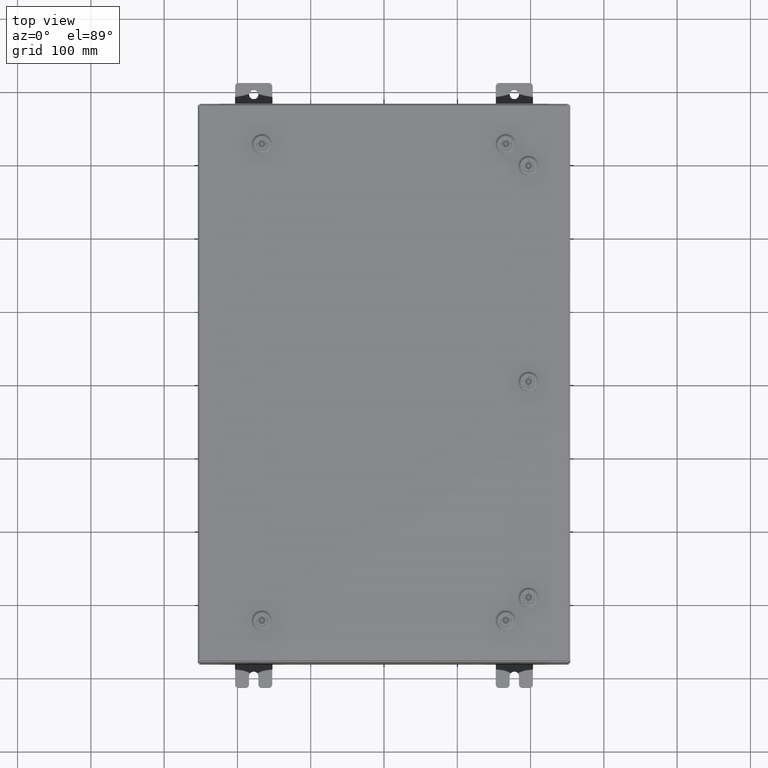
[diagram: clean part render]
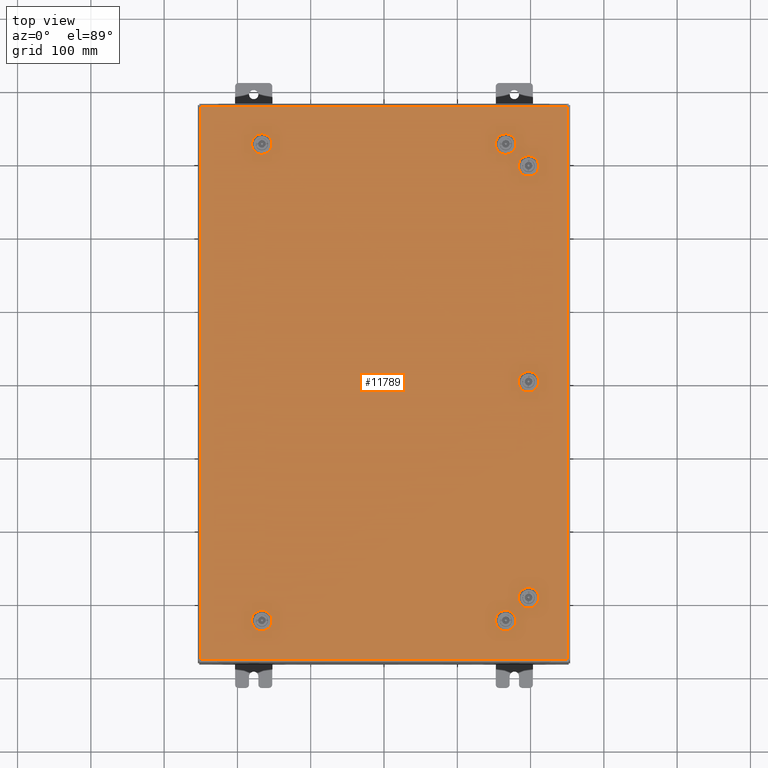
[diagram: same view with one face highlighted and labeled with its STEP entity id]
A machine part, top view. The second image highlights one B-rep face of the part: STEP entity #11789.
In plain terms, the highlighted planar face has unit normal (0, 0, -1).
Its self-contained STEP definition (entity closure, byte-faithful):
#49 = VECTOR ( 'NONE', #11879, 39.37007874015748100 ) ;
#198 = AXIS2_PLACEMENT_3D ( 'NONE', #49388, #19761, #54386 ) ;
#611 = EDGE_CURVE ( 'NONE', #34661, #18356, #27141, .T. ) ;
#845 = DIRECTION ( 'NONE',  ( 0.0000000000000000000, 0.0000000000000000000, 1.000000000000000000 ) ) ;
#1038 = DIRECTION ( 'NONE',  ( 1.000000000000000000, 0.0000000000000000000, 0.0000000000000000000 ) ) ;
#1061 = EDGE_LOOP ( 'NONE', ( #62423, #33838, #8929, #53612, #38947 ) ) ;
#1342 = CARTESIAN_POINT ( 'NONE',  ( -6.562499999999986700, 12.78779999999999400, 0.0000000000000000000 ) ) ;
#1363 = VERTEX_POINT ( 'NONE', #14179 ) ;
#1647 = FACE_BOUND ( 'NONE', #18962, .T. ) ;
#1714 = LINE ( 'NONE', #3328, #39756 ) ;
#1718 = CARTESIAN_POINT ( 'NONE',  ( 9.849799999999994800, 14.84980000000000200, 8.878505979408856000E-016 ) ) ;
#2415 = VERTEX_POINT ( 'NONE', #27401 ) ;
#2706 = DIRECTION ( 'NONE',  ( -0.0000000000000000000, -6.982962677686266700E-015, 1.000000000000000000 ) ) ;
#2751 = VERTEX_POINT ( 'NONE', #28234 ) ;
#2952 = AXIS2_PLACEMENT_3D ( 'NONE', #26917, #61451, #31900 ) ;
#3195 = FACE_BOUND ( 'NONE', #38734, .T. ) ;
#3328 = CARTESIAN_POINT ( 'NONE',  ( -6.363047624732096200, -13.18279999999999000, -5.239805704455435800E-014 ) ) ;
#3753 = CARTESIAN_POINT ( 'NONE',  ( 9.849799999999994800, 14.84980000000000200, 8.878505979408856000E-016 ) ) ;
#3958 = EDGE_CURVE ( 'NONE', #45431, #29793, #37770, .T. ) ;
#4021 = VERTEX_POINT ( 'NONE', #3753 ) ;
#4144 = DIRECTION ( 'NONE',  ( -8.218046007208784700E-015, -1.000000000000000000, 0.0000000000000000000 ) ) ;
#4161 = CIRCLE ( 'NONE', #198, 0.4424999999999983400 ) ;
#4304 = VERTEX_POINT ( 'NONE', #15215 ) ;
#4361 = AXIS2_PLACEMENT_3D ( 'NONE', #46582, #17102, #47200 ) ;
#4365 = CARTESIAN_POINT ( 'NONE',  ( 7.392800000000011800, 0.1994523752679053200, 0.0000000000000000000 ) ) ;
#4535 = LINE ( 'NONE', #1718, #6091 ) ;
#4689 = EDGE_CURVE ( 'NONE', #4304, #2751, #27634, .T. ) ;
#4789 = CARTESIAN_POINT ( 'NONE',  ( 7.392800000000008300, -0.1994523752678671000, 0.0000000000000000000 ) ) ;
#4820 = ORIENTED_EDGE ( 'NONE', *, *, #3958, .F. ) ;
#4878 = VERTEX_POINT ( 'NONE', #33405 ) ;
#5133 = CARTESIAN_POINT ( 'NONE',  ( 8.182800000000000300, 11.76195237526789900, 0.0000000000000000000 ) ) ;
#5434 = DIRECTION ( 'NONE',  ( 8.218046007208784700E-015, -1.000000000000000000, -6.982962677686345600E-015 ) ) ;
#5483 = CARTESIAN_POINT ( 'NONE',  ( -9.849800000000001900, 14.84980000000000000, -3.483106191921935600E-015 ) ) ;
#5689 = VERTEX_POINT ( 'NONE', #13405 ) ;
#6091 = VECTOR ( 'NONE', #31455, 39.37007874015748100 ) ;
#6341 = DIRECTION ( 'NONE',  ( 1.000000000000000000, 0.0000000000000000000, 0.0000000000000000000 ) ) ;
#6763 = EDGE_CURVE ( 'NONE', #30384, #2415, #61602, .T. ) ;
#6912 = ORIENTED_EDGE ( 'NONE', *, *, #6763, .F. ) ;
#6977 = CARTESIAN_POINT ( 'NONE',  ( -6.761952375267871900, -12.39280000000000100, -4.688151652918228700E-014 ) ) ;
#7195 = DIRECTION ( 'NONE',  ( 0.0000000000000000000, 0.0000000000000000000, 1.000000000000000000 ) ) ;
#7910 = AXIS2_PLACEMENT_3D ( 'NONE', #48904, #19251, #53881 ) ;
#7970 = EDGE_CURVE ( 'NONE', #61320, #52871, #19000, .T. ) ;
#8096 = CARTESIAN_POINT ( 'NONE',  ( 6.761952375267871900, -12.39280000000000100, 0.0000000000000000000 ) ) ;
#8213 = ORIENTED_EDGE ( 'NONE', *, *, #23076, .F. ) ;
#8251 = CIRCLE ( 'NONE', #29897, 0.4424999999999972800 ) ;
#8424 = EDGE_CURVE ( 'NONE', #60074, #4878, #15041, .T. ) ;
#8464 = CIRCLE ( 'NONE', #13867, 0.4424999999999972800 ) ;
#8487 = LINE ( 'NONE', #46285, #21721 ) ;
#8495 = AXIS2_PLACEMENT_3D ( 'NONE', #44945, #50078, #14098 ) ;
#8929 = ORIENTED_EDGE ( 'NONE', *, *, #25871, .F. ) ;
#9344 = DIRECTION ( 'NONE',  ( 6.982962677686266700E-015, -0.0000000000000000000, 1.000000000000000000 ) ) ;
#10157 = DIRECTION ( 'NONE',  ( 1.000000000000000000, -1.095739467627835000E-014, 6.982962677686171300E-015 ) ) ;
#10256 = EDGE_LOOP ( 'NONE', ( #19436, #41202, #13131, #6912, #30963 ) ) ;
#10565 = DIRECTION ( 'NONE',  ( 1.000000000000000000, 0.0000000000000000000, -6.982962677686248600E-015 ) ) ;
#10963 = DIRECTION ( 'NONE',  ( -0.0000000000000000000, -6.982962677686266700E-015, 1.000000000000000000 ) ) ;
#11544 = VERTEX_POINT ( 'NONE', #60140 ) ;
#11581 = AXIS2_PLACEMENT_3D ( 'NONE', #36941, #7195, #41928 ) ;
#11789 = ADVANCED_FACE ( 'NONE', ( #17987, #3195, #41255, #54360, #28058, #14822, #1647, #52821 ), #12475, .F. ) ;
#11879 = DIRECTION ( 'NONE',  ( -1.000000000000000000, 1.095739467627835000E-014, 0.0000000000000000000 ) ) ;
#12104 = EDGE_CURVE ( 'NONE', #4878, #36389, #31912, .T. ) ;
#12151 = CARTESIAN_POINT ( 'NONE',  ( 6.363047624732095300, 13.18279999999999000, -2.498676961502389700E-014 ) ) ;
#12158 = AXIS2_PLACEMENT_3D ( 'NONE', #51239, #21596, #56199 ) ;
#12207 = CARTESIAN_POINT ( 'NONE',  ( -6.363047624732101500, 12.39279999999999800, 0.0000000000000000000 ) ) ;
#12475 = PLANE ( 'NONE',  #4361 ) ;
#12554 = AXIS2_PLACEMENT_3D ( 'NONE', #32421, #2706, #37423 ) ;
#13131 = ORIENTED_EDGE ( 'NONE', *, *, #35836, .F. ) ;
#13259 = LINE ( 'NONE', #41656, #49 ) ;
#13405 = CARTESIAN_POINT ( 'NONE',  ( 9.849799999999996600, -14.84979999999999300, -2.048885995248197400E-016 ) ) ;
#13731 = VECTOR ( 'NONE', #46308, 39.37007874015748100 ) ;
#13867 = AXIS2_PLACEMENT_3D ( 'NONE', #1342, #36082, #6341 ) ;
#13946 = VERTEX_POINT ( 'NONE', #32050 ) ;
#14098 = DIRECTION ( 'NONE',  ( 1.000000000000000000, 0.0000000000000000000, 6.982962677686260400E-015 ) ) ;
#14179 = CARTESIAN_POINT ( 'NONE',  ( -6.119999999999989400, 12.78779999999999400, 0.0000000000000000000 ) ) ;
#14561 = DIRECTION ( 'NONE',  ( -6.982962677686266700E-015, -6.982962677686266700E-015, 1.000000000000000000 ) ) ;
#14578 = LINE ( 'NONE', #18203, #26287 ) ;
#14763 = CARTESIAN_POINT ( 'NONE',  ( 8.182800000000000300, 0.1994523752679009100, 0.0000000000000000000 ) ) ;
#14822 = FACE_BOUND ( 'NONE', #1061, .T. ) ;
#15041 = CIRCLE ( 'NONE', #59818, 0.4424999999999972800 ) ;
#15215 = CARTESIAN_POINT ( 'NONE',  ( 7.004999999999983900, 12.78779999999999700, -2.946949909237161200E-014 ) ) ;
#15503 = AXIS2_PLACEMENT_3D ( 'NONE', #30605, #845, #35582 ) ;
#15965 = CARTESIAN_POINT ( 'NONE',  ( 6.562499999999986700, 12.78779999999999700, -2.637953810749545800E-014 ) ) ;
#16057 = CARTESIAN_POINT ( 'NONE',  ( 6.562499999999987600, -12.78779999999999700, -2.326024867937287700E-014 ) ) ;
#16573 = EDGE_CURVE ( 'NONE', #47826, #13946, #20865, .T. ) ;
#16574 = DIRECTION ( 'NONE',  ( -8.218046007208852600E-015, 1.000000000000000000, -0.0000000000000000000 ) ) ;
#16610 = VECTOR ( 'NONE', #47365, 39.37007874015748100 ) ;
#17102 = DIRECTION ( 'NONE',  ( 0.0000000000000000000, 0.0000000000000000000, -1.000000000000000000 ) ) ;
#17327 = VECTOR ( 'NONE', #44183, 39.37007874015748100 ) ;
#17347 = EDGE_LOOP ( 'NONE', ( #30222, #23802, #36205, #8213 ) ) ;
#17987 = FACE_BOUND ( 'NONE', #42032, .T. ) ;
#18203 = CARTESIAN_POINT ( 'NONE',  ( -6.363047624732104200, -12.39280000000000100, -4.688151652918229300E-014 ) ) ;
#18230 = AXIS2_PLACEMENT_3D ( 'NONE', #52228, #22604, #57185 ) ;
#18356 = VERTEX_POINT ( 'NONE', #46250 ) ;
#18945 = CIRCLE ( 'NONE', #7910, 0.4424999999999972800 ) ;
#18962 = EDGE_LOOP ( 'NONE', ( #24291, #27328, #18977, #20197, #43527 ) ) ;
#18977 = ORIENTED_EDGE ( 'NONE', *, *, #59113, .F. ) ;
#19000 = LINE ( 'NONE', #12207, #29072 ) ;
#19251 = DIRECTION ( 'NONE',  ( 0.0000000000000000000, 0.0000000000000000000, 1.000000000000000000 ) ) ;
#19436 = ORIENTED_EDGE ( 'NONE', *, *, #45437, .F. ) ;
#19454 = EDGE_LOOP ( 'NONE', ( #4820, #39763, #51437, #52896, #32957 ) ) ;
#19756 = CARTESIAN_POINT ( 'NONE',  ( 8.182800000000005600, -11.36304762473213100, -2.415703400261412700E-013 ) ) ;
#19761 = DIRECTION ( 'NONE',  ( -0.0000000000000000000, -6.982962677686266700E-015, 1.000000000000000000 ) ) ;
#20100 = EDGE_CURVE ( 'NONE', #18356, #45431, #54684, .T. ) ;
#20197 = ORIENTED_EDGE ( 'NONE', *, *, #47053, .F. ) ;
#20417 = DIRECTION ( 'NONE',  ( -8.218046007208770500E-015, -1.000000000000000000, 0.0000000000000000000 ) ) ;
#20538 = CARTESIAN_POINT ( 'NONE',  ( -6.562499999999986700, 12.78779999999999400, 0.0000000000000000000 ) ) ;
#20865 = LINE ( 'NONE', #40148, #45674 ) ;
#20996 = DIRECTION ( 'NONE',  ( -1.000000000000000000, 0.0000000000000000000, 6.982962677686260400E-015 ) ) ;
#21085 = DIRECTION ( 'NONE',  ( 1.000000000000000000, 0.0000000000000000000, 6.982962677686260400E-015 ) ) ;
#21596 = DIRECTION ( 'NONE',  ( 0.0000000000000000000, 0.0000000000000000000, 1.000000000000000000 ) ) ;
#21721 = VECTOR ( 'NONE', #16574, 39.37007874015748100 ) ;
#22143 = CARTESIAN_POINT ( 'NONE',  ( -9.849799999999996600, -14.84979999999999500, -2.048885995248197400E-016 ) ) ;
#22406 = EDGE_CURVE ( 'NONE', #56643, #47826, #4161, .T. ) ;
#22505 = VERTEX_POINT ( 'NONE', #50488 ) ;
#22604 = DIRECTION ( 'NONE',  ( 6.982962677686266700E-015, -0.0000000000000000000, 1.000000000000000000 ) ) ;
#23076 = EDGE_CURVE ( 'NONE', #43039, #57817, #47853, .T. ) ;
#23315 = CARTESIAN_POINT ( 'NONE',  ( 6.363047624732104200, -12.39280000000000100, -2.189474691415834200E-014 ) ) ;
#23802 = ORIENTED_EDGE ( 'NONE', *, *, #45123, .F. ) ;
#23838 = VECTOR ( 'NONE', #20417, 39.37007874015748100 ) ;
#24007 = CARTESIAN_POINT ( 'NONE',  ( -6.562499999999987600, -12.78779999999999700, -4.963978678686834100E-014 ) ) ;
#24291 = ORIENTED_EDGE ( 'NONE', *, *, #7970, .F. ) ;
#24358 = AXIS2_PLACEMENT_3D ( 'NONE', #60373, #30787, #1038 ) ;
#25160 = EDGE_CURVE ( 'NONE', #57817, #62711, #51722, .T. ) ;
#25506 = LINE ( 'NONE', #28680, #34019 ) ;
#25519 = DIRECTION ( 'NONE',  ( 1.000000000000000000, 0.0000000000000000000, 0.0000000000000000000 ) ) ;
#25581 = ORIENTED_EDGE ( 'NONE', *, *, #47153, .T. ) ;
#25602 = CARTESIAN_POINT ( 'NONE',  ( 6.363047624732101500, 12.39280000000000100, -2.498676961502394800E-014 ) ) ;
#25699 = CARTESIAN_POINT ( 'NONE',  ( -6.363047624732101500, 12.39279999999999800, 0.0000000000000000000 ) ) ;
#25871 = EDGE_CURVE ( 'NONE', #36389, #4304, #8251, .T. ) ;
#26287 = VECTOR ( 'NONE', #47847, 39.37007874015748100 ) ;
#26917 = CARTESIAN_POINT ( 'NONE',  ( -6.562499999999987600, -12.78779999999999700, -4.963978678686834100E-014 ) ) ;
#27141 = CIRCLE ( 'NONE', #8495, 0.4424999999999972800 ) ;
#27242 = DIRECTION ( 'NONE',  ( 1.000000000000000000, -0.0000000000000000000, -0.0000000000000000000 ) ) ;
#27328 = ORIENTED_EDGE ( 'NONE', *, *, #61183, .F. ) ;
#27384 = ORIENTED_EDGE ( 'NONE', *, *, #16573, .F. ) ;
#27401 = CARTESIAN_POINT ( 'NONE',  ( -6.363047624732104200, -12.39280000000000100, -4.688151652918229300E-014 ) ) ;
#27634 = CIRCLE ( 'NONE', #18230, 0.4424999999999972800 ) ;
#27875 = CARTESIAN_POINT ( 'NONE',  ( -6.761952375267868300, 13.18279999999999000, 0.0000000000000000000 ) ) ;
#28058 = FACE_BOUND ( 'NONE', #10256, .T. ) ;
#28234 = CARTESIAN_POINT ( 'NONE',  ( 6.761952375267868300, 13.18279999999999300, 0.0000000000000000000 ) ) ;
#28375 = VERTEX_POINT ( 'NONE', #44396 ) ;
#28680 = CARTESIAN_POINT ( 'NONE',  ( 7.392800000000011800, 11.76195237526790500, 0.0000000000000000000 ) ) ;
#28803 = EDGE_CURVE ( 'NONE', #2751, #60074, #56110, .T. ) ;
#28807 = ORIENTED_EDGE ( 'NONE', *, *, #58001, .F. ) ;
#28992 = DIRECTION ( 'NONE',  ( 0.0000000000000000000, 1.000000000000000000, 6.982962677686286400E-015 ) ) ;
#29072 = VECTOR ( 'NONE', #27242, 39.37007874015748100 ) ;
#29316 = VERTEX_POINT ( 'NONE', #45399 ) ;
#29336 = VECTOR ( 'NONE', #10157, 39.37007874015748100 ) ;
#29793 = VERTEX_POINT ( 'NONE', #38111 ) ;
#29897 = AXIS2_PLACEMENT_3D ( 'NONE', #15965, #50636, #20996 ) ;
#30222 = ORIENTED_EDGE ( 'NONE', *, *, #48364, .F. ) ;
#30281 = EDGE_CURVE ( 'NONE', #41438, #56643, #32054, .T. ) ;
#30300 = CARTESIAN_POINT ( 'NONE',  ( -6.363047624732096200, -13.18279999999999000, -5.239805704455435800E-014 ) ) ;
#30384 = VERTEX_POINT ( 'NONE', #40409 ) ;
#30605 = CARTESIAN_POINT ( 'NONE',  ( 7.787800000000005200, 11.56250000000001600, 0.0000000000000000000 ) ) ;
#30787 = DIRECTION ( 'NONE',  ( 0.0000000000000000000, 0.0000000000000000000, 1.000000000000000000 ) ) ;
#30963 = ORIENTED_EDGE ( 'NONE', *, *, #31274, .F. ) ;
#31274 = EDGE_CURVE ( 'NONE', #44907, #30384, #42091, .T. ) ;
#31362 = CARTESIAN_POINT ( 'NONE',  ( 9.849799999999996600, -14.84979999999999300, -2.048885995248197400E-016 ) ) ;
#31455 = DIRECTION ( 'NONE',  ( -1.000000000000000000, -0.0000000000000000000, -0.0000000000000000000 ) ) ;
#31784 = CARTESIAN_POINT ( 'NONE',  ( -9.849800000000001900, 14.84980000000000000, -3.483106191921935600E-015 ) ) ;
#31823 = LINE ( 'NONE', #5483, #33362 ) ;
#31900 = DIRECTION ( 'NONE',  ( 0.0000000000000000000, 1.000000000000000000, 6.982962677686269100E-015 ) ) ;
#31912 = LINE ( 'NONE', #25602, #45108 ) ;
#32050 = CARTESIAN_POINT ( 'NONE',  ( 7.392800000000014500, -11.76195237526790500, -2.443558770110843000E-013 ) ) ;
#32054 = LINE ( 'NONE', #58802, #17327 ) ;
#32253 = ORIENTED_EDGE ( 'NONE', *, *, #33883, .T. ) ;
#32421 = CARTESIAN_POINT ( 'NONE',  ( -6.562499999999987600, -12.78779999999999700, -4.963978678686834100E-014 ) ) ;
#32538 = AXIS2_PLACEMENT_3D ( 'NONE', #40726, #10963, #45715 ) ;
#32655 = VECTOR ( 'NONE', #45883, 39.37007874015748100 ) ;
#32957 = ORIENTED_EDGE ( 'NONE', *, *, #49052, .F. ) ;
#33362 = VECTOR ( 'NONE', #35206, 39.37007874015748100 ) ;
#33405 = CARTESIAN_POINT ( 'NONE',  ( 6.363047624732101500, 12.39280000000000100, -2.498676961502394800E-014 ) ) ;
#33838 = ORIENTED_EDGE ( 'NONE', *, *, #4689, .F. ) ;
#33871 = CARTESIAN_POINT ( 'NONE',  ( 7.392800000000008300, 11.36304762473213300, 0.0000000000000000000 ) ) ;
#33883 = EDGE_CURVE ( 'NONE', #45192, #49117, #31823, .T. ) ;
#34019 = VECTOR ( 'NONE', #4144, 39.37007874015748100 ) ;
#34661 = VERTEX_POINT ( 'NONE', #45909 ) ;
#34867 = DIRECTION ( 'NONE',  ( -8.218046007208830500E-015, 1.000000000000000000, -0.0000000000000000000 ) ) ;
#35206 = DIRECTION ( 'NONE',  ( 0.0000000000000000000, -1.000000000000000000, 0.0000000000000000000 ) ) ;
#35305 = CIRCLE ( 'NONE', #11581, 0.4424999999999972800 ) ;
#35582 = DIRECTION ( 'NONE',  ( 1.000000000000000000, 0.0000000000000000000, 0.0000000000000000000 ) ) ;
#35591 = EDGE_CURVE ( 'NONE', #4021, #45192, #4535, .T. ) ;
#35836 = EDGE_CURVE ( 'NONE', #2415, #55502, #14578, .T. ) ;
#35907 = CIRCLE ( 'NONE', #12158, 0.4424999999999983400 ) ;
#36082 = DIRECTION ( 'NONE',  ( 0.0000000000000000000, 0.0000000000000000000, 1.000000000000000000 ) ) ;
#36205 = ORIENTED_EDGE ( 'NONE', *, *, #25160, .F. ) ;
#36236 = VECTOR ( 'NONE', #62840, 39.37007874015748100 ) ;
#36389 = VERTEX_POINT ( 'NONE', #62941 ) ;
#36818 = EDGE_CURVE ( 'NONE', #5689, #4021, #41736, .T. ) ;
#36941 = CARTESIAN_POINT ( 'NONE',  ( 7.787800000000005200, 11.56250000000001600, 0.0000000000000000000 ) ) ;
#37335 = CIRCLE ( 'NONE', #39284, 0.4424999999999972800 ) ;
#37423 = DIRECTION ( 'NONE',  ( 0.0000000000000000000, 1.000000000000000000, 6.982962677686286400E-015 ) ) ;
#37538 = LINE ( 'NONE', #5133, #49113 ) ;
#37770 = LINE ( 'NONE', #23315, #36236 ) ;
#38053 = DIRECTION ( 'NONE',  ( 1.000000000000000000, 1.095739467627835000E-014, 9.732121487607470400E-029 ) ) ;
#38111 = CARTESIAN_POINT ( 'NONE',  ( 6.363047624732104200, -12.39280000000000100, -2.189474691415834200E-014 ) ) ;
#38734 = EDGE_LOOP ( 'NONE', ( #58151, #28807, #51943, #44517 ) ) ;
#38947 = ORIENTED_EDGE ( 'NONE', *, *, #8424, .F. ) ;
#39110 = ORIENTED_EDGE ( 'NONE', *, *, #22406, .F. ) ;
#39128 = CARTESIAN_POINT ( 'NONE',  ( 6.562499999999986700, 12.78779999999999700, -2.637953810749545800E-014 ) ) ;
#39284 = AXIS2_PLACEMENT_3D ( 'NONE', #20538, #55145, #25519 ) ;
#39756 = VECTOR ( 'NONE', #38053, 39.37007874015748100 ) ;
#39763 = ORIENTED_EDGE ( 'NONE', *, *, #20100, .F. ) ;
#39922 = CARTESIAN_POINT ( 'NONE',  ( 6.363047624732096200, -13.18279999999999000, -2.741128742953046100E-014 ) ) ;
#40148 = CARTESIAN_POINT ( 'NONE',  ( 7.392800000000014500, -11.76195237526790500, -2.443558770110843500E-013 ) ) ;
#40409 = CARTESIAN_POINT ( 'NONE',  ( -6.119999999999990300, -12.78779999999999700, -4.963978678686834100E-014 ) ) ;
#40726 = CARTESIAN_POINT ( 'NONE',  ( 7.787800000000006900, -11.56250000000001600, -2.429631085186127900E-013 ) ) ;
#40896 = CARTESIAN_POINT ( 'NONE',  ( -9.849799999999996600, -14.84979999999999500, -2.048885995248197400E-016 ) ) ;
#40899 = AXIS2_PLACEMENT_3D ( 'NONE', #44336, #14561, #49244 ) ;
#41202 = ORIENTED_EDGE ( 'NONE', *, *, #43323, .F. ) ;
#41255 = FACE_BOUND ( 'NONE', #17347, .T. ) ;
#41438 = VERTEX_POINT ( 'NONE', #49098 ) ;
#41656 = CARTESIAN_POINT ( 'NONE',  ( -6.363047624732095300, 13.18279999999998400, 0.0000000000000000000 ) ) ;
#41736 = LINE ( 'NONE', #31362, #13731 ) ;
#41865 = AXIS2_PLACEMENT_3D ( 'NONE', #16057, #50718, #21085 ) ;
#41928 = DIRECTION ( 'NONE',  ( 1.000000000000000000, 0.0000000000000000000, 0.0000000000000000000 ) ) ;
#42032 = EDGE_LOOP ( 'NONE', ( #27384, #39110, #53700, #46950 ) ) ;
#42091 = CIRCLE ( 'NONE', #12554, 0.4424999999999961700 ) ;
#43039 = VERTEX_POINT ( 'NONE', #14763 ) ;
#43323 = EDGE_CURVE ( 'NONE', #55502, #59053, #53003, .T. ) ;
#43341 = ORIENTED_EDGE ( 'NONE', *, *, #35591, .T. ) ;
#43527 = ORIENTED_EDGE ( 'NONE', *, *, #54220, .F. ) ;
#43934 = EDGE_CURVE ( 'NONE', #13946, #41438, #55304, .T. ) ;
#44101 = DIRECTION ( 'NONE',  ( -1.000000000000000000, 0.0000000000000000000, 6.982962677686269100E-015 ) ) ;
#44183 = DIRECTION ( 'NONE',  ( 8.218046007208830500E-015, 1.000000000000000000, 6.982962677686306200E-015 ) ) ;
#44336 = CARTESIAN_POINT ( 'NONE',  ( 6.562499999999987600, -12.78779999999999700, -2.326024867937287700E-014 ) ) ;
#44396 = CARTESIAN_POINT ( 'NONE',  ( 6.363047624732096200, -13.18279999999999000, -2.741128742953046100E-014 ) ) ;
#44517 = ORIENTED_EDGE ( 'NONE', *, *, #52933, .F. ) ;
#44907 = VERTEX_POINT ( 'NONE', #30300 ) ;
#44945 = CARTESIAN_POINT ( 'NONE',  ( 6.562499999999987600, -12.78779999999999700, -2.326024867937287700E-014 ) ) ;
#45108 = VECTOR ( 'NONE', #10565, 39.37007874015748100 ) ;
#45123 = EDGE_CURVE ( 'NONE', #62711, #61096, #35907, .T. ) ;
#45192 = VERTEX_POINT ( 'NONE', #31784 ) ;
#45399 = CARTESIAN_POINT ( 'NONE',  ( 8.182800000000003800, 11.36304762473213100, 0.0000000000000000000 ) ) ;
#45431 = VERTEX_POINT ( 'NONE', #8096 ) ;
#45437 = EDGE_CURVE ( 'NONE', #59053, #44907, #1714, .T. ) ;
#45674 = VECTOR ( 'NONE', #5434, 39.37007874015748100 ) ;
#45715 = DIRECTION ( 'NONE',  ( 0.0000000000000000000, 1.000000000000000000, 6.982962677686304600E-015 ) ) ;
#45855 = LINE ( 'NONE', #40896, #32655 ) ;
#45883 = DIRECTION ( 'NONE',  ( 1.000000000000000000, -0.0000000000000000000, -0.0000000000000000000 ) ) ;
#45909 = CARTESIAN_POINT ( 'NONE',  ( 6.761952375267869200, -13.18279999999999300, -2.462575044458744400E-014 ) ) ;
#46250 = CARTESIAN_POINT ( 'NONE',  ( 7.004999999999984800, -12.78779999999999700, -2.017028769449672900E-014 ) ) ;
#46255 = CARTESIAN_POINT ( 'NONE',  ( -6.761952375267871900, 12.39279999999999800, 0.0000000000000000000 ) ) ;
#46285 = CARTESIAN_POINT ( 'NONE',  ( 8.182800000000000300, 0.1994523752679009100, 0.0000000000000000000 ) ) ;
#46308 = DIRECTION ( 'NONE',  ( 0.0000000000000000000, 1.000000000000000000, 0.0000000000000000000 ) ) ;
#46582 = CARTESIAN_POINT ( 'NONE',  ( 0.0000000000000000000, 0.0000000000000000000, 0.0000000000000000000 ) ) ;
#46950 = ORIENTED_EDGE ( 'NONE', *, *, #43934, .F. ) ;
#47053 = EDGE_CURVE ( 'NONE', #1363, #63098, #37335, .T. ) ;
#47153 = EDGE_CURVE ( 'NONE', #49117, #5689, #45855, .T. ) ;
#47200 = DIRECTION ( 'NONE',  ( -1.000000000000000000, 0.0000000000000000000, -0.0000000000000000000 ) ) ;
#47365 = DIRECTION ( 'NONE',  ( -1.000000000000000000, -1.095739467627835000E-014, 6.982962677686269100E-015 ) ) ;
#47826 = VERTEX_POINT ( 'NONE', #60951 ) ;
#47847 = DIRECTION ( 'NONE',  ( -1.000000000000000000, 0.0000000000000000000, 1.946424297521520700E-029 ) ) ;
#47853 = CIRCLE ( 'NONE', #24358, 0.4424999999999972800 ) ;
#48364 = EDGE_CURVE ( 'NONE', #61096, #43039, #8487, .T. ) ;
#48868 = CIRCLE ( 'NONE', #15503, 0.4424999999999983400 ) ;
#48904 = CARTESIAN_POINT ( 'NONE',  ( -6.562499999999986700, 12.78779999999999400, 0.0000000000000000000 ) ) ;
#49052 = EDGE_CURVE ( 'NONE', #29793, #28375, #57272, .T. ) ;
#49098 = CARTESIAN_POINT ( 'NONE',  ( 8.182800000000002100, -11.76195237526789900, -2.443558770110843000E-013 ) ) ;
#49113 = VECTOR ( 'NONE', #34867, 39.37007874015748100 ) ;
#49117 = VERTEX_POINT ( 'NONE', #22143 ) ;
#49244 = DIRECTION ( 'NONE',  ( 1.000000000000000000, 0.0000000000000000000, 6.982962677686260400E-015 ) ) ;
#49388 = CARTESIAN_POINT ( 'NONE',  ( 7.787800000000006900, -11.56250000000001600, -2.429631085186127900E-013 ) ) ;
#49757 = CARTESIAN_POINT ( 'NONE',  ( 8.182800000000003800, -0.1994523752678676000, 0.0000000000000000000 ) ) ;
#50039 = CARTESIAN_POINT ( 'NONE',  ( 7.392800000000011800, 0.1994523752679053800, 0.0000000000000000000 ) ) ;
#50078 = DIRECTION ( 'NONE',  ( -6.982962677686266700E-015, -6.982962677686266700E-015, 1.000000000000000000 ) ) ;
#50488 = CARTESIAN_POINT ( 'NONE',  ( 7.392800000000011800, 11.76195237526790500, 0.0000000000000000000 ) ) ;
#50636 = DIRECTION ( 'NONE',  ( 6.982962677686266700E-015, -0.0000000000000000000, 1.000000000000000000 ) ) ;
#50718 = DIRECTION ( 'NONE',  ( -6.982962677686266700E-015, -6.982962677686266700E-015, 1.000000000000000000 ) ) ;
#51239 = CARTESIAN_POINT ( 'NONE',  ( 7.787800000000005200, 1.529834876451990400E-014, 0.0000000000000000000 ) ) ;
#51437 = ORIENTED_EDGE ( 'NONE', *, *, #611, .F. ) ;
#51722 = LINE ( 'NONE', #50039, #23838 ) ;
#51900 = CARTESIAN_POINT ( 'NONE',  ( -6.363047624732095300, 13.18279999999998400, 0.0000000000000000000 ) ) ;
#51943 = ORIENTED_EDGE ( 'NONE', *, *, #62515, .F. ) ;
#52228 = CARTESIAN_POINT ( 'NONE',  ( 6.562499999999986700, 12.78779999999999700, -2.637953810749545800E-014 ) ) ;
#52821 = FACE_OUTER_BOUND ( 'NONE', #59028, .T. ) ;
#52871 = VERTEX_POINT ( 'NONE', #25699 ) ;
#52896 = ORIENTED_EDGE ( 'NONE', *, *, #62749, .F. ) ;
#52933 = EDGE_CURVE ( 'NONE', #11544, #22505, #35305, .T. ) ;
#53003 = CIRCLE ( 'NONE', #2952, 0.4424999999999961700 ) ;
#53170 = VERTEX_POINT ( 'NONE', #33871 ) ;
#53612 = ORIENTED_EDGE ( 'NONE', *, *, #12104, .F. ) ;
#53700 = ORIENTED_EDGE ( 'NONE', *, *, #30281, .F. ) ;
#53881 = DIRECTION ( 'NONE',  ( 1.000000000000000000, 0.0000000000000000000, 0.0000000000000000000 ) ) ;
#54220 = EDGE_CURVE ( 'NONE', #52871, #1363, #18945, .T. ) ;
#54325 = EDGE_CURVE ( 'NONE', #29316, #11544, #37538, .T. ) ;
#54360 = FACE_BOUND ( 'NONE', #19454, .T. ) ;
#54386 = DIRECTION ( 'NONE',  ( 0.0000000000000000000, 1.000000000000000000, 6.982962677686270700E-015 ) ) ;
#54684 = CIRCLE ( 'NONE', #40899, 0.4424999999999972800 ) ;
#55145 = DIRECTION ( 'NONE',  ( 0.0000000000000000000, 0.0000000000000000000, 1.000000000000000000 ) ) ;
#55304 = CIRCLE ( 'NONE', #32538, 0.4424999999999961700 ) ;
#55502 = VERTEX_POINT ( 'NONE', #6977 ) ;
#55889 = CARTESIAN_POINT ( 'NONE',  ( -6.761952375267869200, -13.18279999999999300, 0.0000000000000000000 ) ) ;
#56110 = LINE ( 'NONE', #57052, #16610 ) ;
#56199 = DIRECTION ( 'NONE',  ( 1.000000000000000000, 0.0000000000000000000, 0.0000000000000000000 ) ) ;
#56643 = VERTEX_POINT ( 'NONE', #19756 ) ;
#57052 = CARTESIAN_POINT ( 'NONE',  ( 6.363047624732095300, 13.18279999999999000, -2.498676961502389700E-014 ) ) ;
#57185 = DIRECTION ( 'NONE',  ( -1.000000000000000000, 0.0000000000000000000, 6.982962677686260400E-015 ) ) ;
#57198 = LINE ( 'NONE', #39922, #29336 ) ;
#57272 = CIRCLE ( 'NONE', #41865, 0.4424999999999972800 ) ;
#57817 = VERTEX_POINT ( 'NONE', #4365 ) ;
#58001 = EDGE_CURVE ( 'NONE', #53170, #29316, #48868, .T. ) ;
#58151 = ORIENTED_EDGE ( 'NONE', *, *, #54325, .F. ) ;
#58567 = DIRECTION ( 'NONE',  ( -0.0000000000000000000, -6.982962677686266700E-015, 1.000000000000000000 ) ) ;
#58802 = CARTESIAN_POINT ( 'NONE',  ( 8.182800000000002100, -11.76195237526789900, -2.443558770110843000E-013 ) ) ;
#58830 = ORIENTED_EDGE ( 'NONE', *, *, #36818, .T. ) ;
#59028 = EDGE_LOOP ( 'NONE', ( #25581, #58830, #43341, #32253 ) ) ;
#59053 = VERTEX_POINT ( 'NONE', #55889 ) ;
#59113 = EDGE_CURVE ( 'NONE', #63098, #63231, #13259, .T. ) ;
#59818 = AXIS2_PLACEMENT_3D ( 'NONE', #39128, #9344, #44101 ) ;
#60074 = VERTEX_POINT ( 'NONE', #12151 ) ;
#60140 = CARTESIAN_POINT ( 'NONE',  ( 8.182800000000000300, 11.76195237526789900, 0.0000000000000000000 ) ) ;
#60373 = CARTESIAN_POINT ( 'NONE',  ( 7.787800000000005200, 1.529834876451990400E-014, 0.0000000000000000000 ) ) ;
#60951 = CARTESIAN_POINT ( 'NONE',  ( 7.392800000000010900, -11.36304762473213300, 0.0000000000000000000 ) ) ;
#61096 = VERTEX_POINT ( 'NONE', #49757 ) ;
#61183 = EDGE_CURVE ( 'NONE', #63231, #61320, #8464, .T. ) ;
#61320 = VERTEX_POINT ( 'NONE', #46255 ) ;
#61451 = DIRECTION ( 'NONE',  ( -0.0000000000000000000, -6.982962677686266700E-015, 1.000000000000000000 ) ) ;
#61602 = CIRCLE ( 'NONE', #62647, 0.4424999999999961700 ) ;
#62423 = ORIENTED_EDGE ( 'NONE', *, *, #28803, .F. ) ;
#62515 = EDGE_CURVE ( 'NONE', #22505, #53170, #25506, .T. ) ;
#62647 = AXIS2_PLACEMENT_3D ( 'NONE', #24007, #58567, #28992 ) ;
#62711 = VERTEX_POINT ( 'NONE', #4789 ) ;
#62749 = EDGE_CURVE ( 'NONE', #28375, #34661, #57198, .T. ) ;
#62840 = DIRECTION ( 'NONE',  ( -1.000000000000000000, -0.0000000000000000000, -6.982962677686314800E-015 ) ) ;
#62941 = CARTESIAN_POINT ( 'NONE',  ( 6.761952375267871900, 12.39280000000000100, -2.777230659996697100E-014 ) ) ;
#63098 = VERTEX_POINT ( 'NONE', #51900 ) ;
#63231 = VERTEX_POINT ( 'NONE', #27875 ) ;